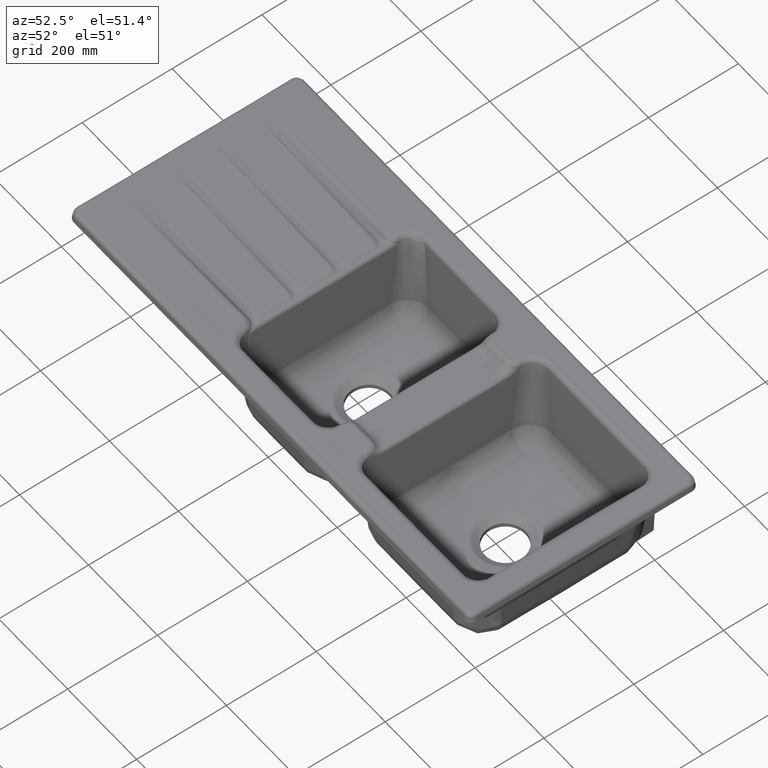
[diagram: clean part render]
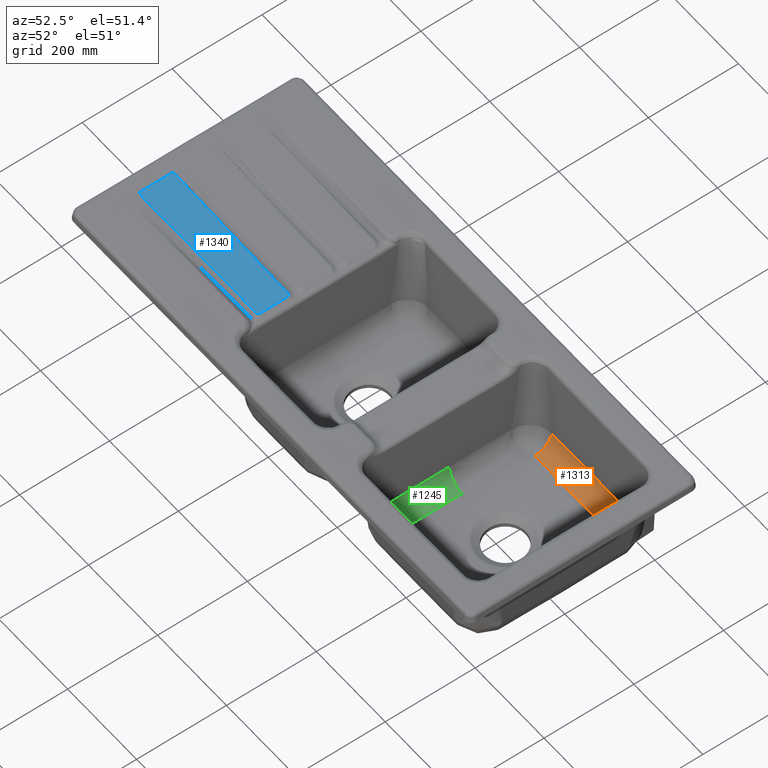
[diagram: same view with three faces highlighted in distinct colors, each labeled with its STEP entity id]
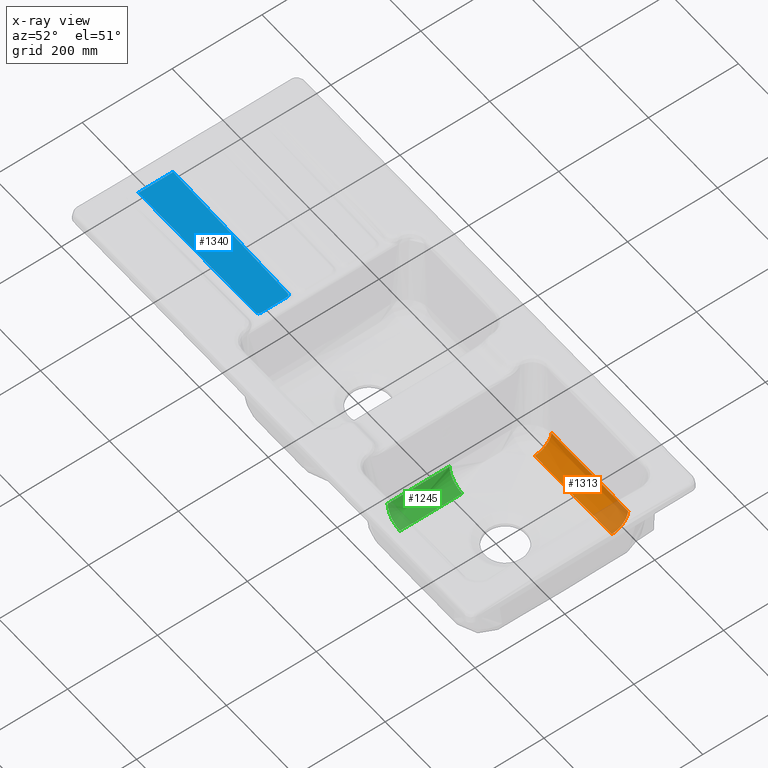
[diagram: x-ray of the same camera — body ghosted, the three highlighted faces saturated]
A machine part, auxiliary view with three faces highlighted in distinct colors.
The next image is the same camera in x-ray (body ghosted, the three faces saturated) — at least one of them is partly hidden behind the body in this view.
Their STEP definitions:

[orange] entity #1313 — the highlighted face is a freeform B-spline surface patch.
#1313=ADVANCED_FACE('',(#1942),#1774,.T.);
#1774=B_SPLINE_SURFACE_WITH_KNOTS('',3,3,((#22487,#22488,#22489,#22490,
#22491,#22492,#22493,#22494,#22495,#22496,#22497,#22498,#22499,#22500,#22501),
(#22502,#22503,#22504,#22505,#22506,#22507,#22508,#22509,#22510,#22511,
#22512,#22513,#22514,#22515,#22516),(#22517,#22518,#22519,#22520,#22521,
#22522,#22523,#22524,#22525,#22526,#22527,#22528,#22529,#22530,#22531),
(#22532,#22533,#22534,#22535,#22536,#22537,#22538,#22539,#22540,#22541,
#22542,#22543,#22544,#22545,#22546),(#22547,#22548,#22549,#22550,#22551,
#22552,#22553,#22554,#22555,#22556,#22557,#22558,#22559,#22560,#22561),
(#22562,#22563,#22564,#22565,#22566,#22567,#22568,#22569,#22570,#22571,
#22572,#22573,#22574,#22575,#22576),(#22577,#22578,#22579,#22580,#22581,
#22582,#22583,#22584,#22585,#22586,#22587,#22588,#22589,#22590,#22591)),
 .UNSPECIFIED.,.F.,.F.,.F.,(4,1,1,1,4),(4,1,1,1,1,1,1,1,1,1,1,1,4),(0.,
0.25,0.5,0.75,1.),(0.,0.125,0.1875,0.25,0.3125,0.375,0.5,0.625,0.6875,0.75,
0.8125,0.875,1.),.UNSPECIFIED.);
#1942=FACE_OUTER_BOUND('',#2467,.T.);
#2467=EDGE_LOOP('',(#3315,#3316,#3317,#3318));
#3315=ORIENTED_EDGE('',*,*,#6634,.F.);
#3316=ORIENTED_EDGE('',*,*,#6635,.F.);
#3317=ORIENTED_EDGE('',*,*,#6632,.T.);
#3318=ORIENTED_EDGE('',*,*,#6409,.T.);
#5600=VERTEX_POINT('',#14038);
#5601=VERTEX_POINT('',#14054);
#5755=VERTEX_POINT('',#22358);
#5756=VERTEX_POINT('',#22482);
#6409=EDGE_CURVE('',#5601,#5600,#7717,.T.);
#6632=EDGE_CURVE('',#5755,#5601,#7843,.T.);
#6634=EDGE_CURVE('',#5756,#5600,#7845,.T.);
#6635=EDGE_CURVE('',#5755,#5756,#7846,.T.);
#7717=B_SPLINE_CURVE_WITH_KNOTS('',3,(#14039,#14040,#14041,#14042,#14043,
#14044,#14045,#14046,#14047,#14048,#14049,#14050,#14051,#14052,#14053),
 .UNSPECIFIED.,.F.,.F.,(4,1,1,1,1,1,1,1,1,1,1,1,4),(0.,0.125,0.1875,0.25,
0.3125,0.375,0.5,0.625,0.6875,0.75,0.8125,0.875,1.),.UNSPECIFIED.);
#7843=B_SPLINE_CURVE_WITH_KNOTS('',3,(#22351,#22352,#22353,#22354,#22355,
#22356,#22357),.UNSPECIFIED.,.F.,.F.,(4,1,1,1,4),(0.,0.25,0.5,0.75,1.),
 .UNSPECIFIED.);
#7845=B_SPLINE_CURVE_WITH_KNOTS('',3,(#22475,#22476,#22477,#22478,#22479,
#22480,#22481),.UNSPECIFIED.,.F.,.F.,(4,1,1,1,4),(0.,0.25,0.5,0.75,1.),
 .UNSPECIFIED.);
#7846=B_SPLINE_CURVE_WITH_KNOTS('',3,(#22483,#22484,#22485,#22486),
 .UNSPECIFIED.,.F.,.F.,(4,4),(0.,1.),.UNSPECIFIED.);
#14038=CARTESIAN_POINT('',(338.671081378164,151.495997560551,-200.730560905507));
#14039=CARTESIAN_POINT('',(115.339493517428,151.485972144195,-200.74195009819));
#14040=CARTESIAN_POINT('',(124.643223175056,151.693548689581,-200.860644256913));
#14041=CARTESIAN_POINT('',(138.59944006903,151.983944231561,-201.030299641444));
#14042=CARTESIAN_POINT('',(157.209122373826,152.310510097852,-201.228280517648));
#14043=CARTESIAN_POINT('',(171.167115077379,152.519903208261,-201.360493016301));
#14044=CARTESIAN_POINT('',(185.125894421641,152.692906115651,-201.468643212749));
#14045=CARTESIAN_POINT('',(203.738438882254,152.871279420085,-201.572353884801));
#14046=CARTESIAN_POINT('',(227.005251366418,152.977423594581,-201.624947614948));
#14047=CARTESIAN_POINT('',(250.272356361887,152.88848458657,-201.562055115514));
#14048=CARTESIAN_POINT('',(268.884628546231,152.690186038739,-201.461415011293));
#14049=CARTESIAN_POINT('',(282.843378661751,152.513301654349,-201.3594842325));
#14050=CARTESIAN_POINT('',(296.801619239753,152.318707721917,-201.230503576311));
#14051=CARTESIAN_POINT('',(315.411487359841,152.004874494788,-201.029728004217));
#14052=CARTESIAN_POINT('',(329.367591416125,151.711636910154,-200.85354771252));
#14053=CARTESIAN_POINT('',(338.671081943358,151.495998048069,-200.730560862834));
#14054=CARTESIAN_POINT('',(115.339493516335,151.485971663498,-200.741950131869));
#22351=CARTESIAN_POINT('',(115.910992838852,188.53611553901,-164.330181068789));
#22352=CARTESIAN_POINT('',(115.842843070017,188.125632856359,-169.023500701935));
#22353=CARTESIAN_POINT('',(115.706553066155,185.628428822245,-178.262538084884));
#22354=CARTESIAN_POINT('',(115.527361967102,177.317510250379,-189.969093788411));
#22355=CARTESIAN_POINT('',(115.3955767507,165.467919693463,-198.07568112226));
#22356=CARTESIAN_POINT('',(115.350176073858,156.186166875423,-200.412648870987));
#22357=CARTESIAN_POINT('',(115.339493516062,151.485971543324,-200.741950140288));
#22358=CARTESIAN_POINT('',(115.911051427888,188.536116567058,-164.3301724387));
#22475=CARTESIAN_POINT('',(338.07845386252,188.537159626038,-164.320409434567));
#22476=CARTESIAN_POINT('',(338.149339332406,188.126747580289,-169.012998498771));
#22477=CARTESIAN_POINT('',(338.290948264988,185.630231060897,-178.250296323825));
#22478=CARTESIAN_POINT('',(338.476810608313,177.321548174765,-189.955269164462));
#22479=CARTESIAN_POINT('',(338.613253144465,165.475053742972,-198.061979626728));
#22480=CARTESIAN_POINT('',(338.660108608401,156.195423331698,-200.400265003798));
#22481=CARTESIAN_POINT('',(338.671080812089,151.495997473548,-200.730560920032));
#22482=CARTESIAN_POINT('',(338.079238459872,188.537191052621,-164.32005971266));
#22483=CARTESIAN_POINT('',(115.911042644857,188.536116615213,-164.330181153879));
#22484=CARTESIAN_POINT('',(189.966398478067,188.537128450231,-164.316835533396));
#22485=CARTESIAN_POINT('',(264.022202209495,188.537650183651,-164.311005328384));
#22486=CARTESIAN_POINT('',(338.078453839142,188.537226690721,-164.319669669157));
#22487=CARTESIAN_POINT('',(338.671081944722,151.495997447296,-200.730560905059));
#22488=CARTESIAN_POINT('',(329.367591417427,151.711636311822,-200.853547758041));
#22489=CARTESIAN_POINT('',(315.411487361023,152.004873899766,-201.029728054202));
#22490=CARTESIAN_POINT('',(296.801619240733,152.318707130432,-201.230503631114));
#22491=CARTESIAN_POINT('',(282.84337866256,152.513301065054,-201.359484290305));
#22492=CARTESIAN_POINT('',(268.884628546855,152.690185451418,-201.461415071433));
#22493=CARTESIAN_POINT('',(250.27235636225,152.888484001446,-201.562055177891));
#22494=CARTESIAN_POINT('',(227.005251366424,152.977423010444,-201.624947678521));
#22495=CARTESIAN_POINT('',(203.738438881907,152.87127883477,-201.572353947121));
#22496=CARTESIAN_POINT('',(185.125894421028,152.692905528348,-201.468643272692));
#22497=CARTESIAN_POINT('',(171.167115076579,152.519902619023,-201.360493073781));
#22498=CARTESIAN_POINT('',(157.209122372856,152.310509506267,-201.228280572057));
#22499=CARTESIAN_POINT('',(138.599440067856,151.983943636309,-201.03029969106));
#22500=CARTESIAN_POINT('',(124.643223173758,151.693548091056,-200.86064430219));
#22501=CARTESIAN_POINT('',(115.339493516062,151.485971543324,-200.741950140288));
#22502=CARTESIAN_POINT('',(338.660409212832,156.195422989792,-200.400260567399));
#22503=CARTESIAN_POINT('',(329.357408446665,156.391971125203,-200.497466534721));
#22504=CARTESIAN_POINT('',(315.402239515853,156.659310685799,-200.638729211465));
#22505=CARTESIAN_POINT('',(296.793955413509,156.945481942095,-200.801816082782));
#22506=CARTESIAN_POINT('',(282.837053543642,157.122942875946,-200.907316732593));
#22507=CARTESIAN_POINT('',(268.879749538256,157.284382835987,-200.990982826771));
#22508=CARTESIAN_POINT('',(250.269521472484,157.465497567636,-201.074123439613));
#22509=CARTESIAN_POINT('',(227.005202055486,157.546719034037,-201.127660202535));
#22510=CARTESIAN_POINT('',(203.741156616102,157.449785861019,-201.08486759697));
#22511=CARTESIAN_POINT('',(185.130690648262,157.286967174541,-200.999753197607));
#22512=CARTESIAN_POINT('',(171.173372118606,157.129096305032,-200.910865152909));
#22513=CARTESIAN_POINT('',(157.2167132411,156.93806391739,-200.802679160846));
#22514=CARTESIAN_POINT('',(138.608625175411,156.640185189846,-200.642186925729));
#22515=CARTESIAN_POINT('',(124.653377347638,156.375393331694,-200.506476125698));
#22516=CARTESIAN_POINT('',(115.350176073858,156.186166875423,-200.412648870987));
#22517=CARTESIAN_POINT('',(338.614152758205,165.475006376374,-198.061966672292));
#22518=CARTESIAN_POINT('',(329.31434430128,165.623609407549,-198.122033871129));
#22519=CARTESIAN_POINT('',(315.364270156849,165.826409690585,-198.212226933688));
#22520=CARTESIAN_POINT('',(296.763310787087,166.04402054525,-198.319338954957));
#22521=CARTESIAN_POINT('',(282.812144166315,166.179152898023,-198.389652242873));
#22522=CARTESIAN_POINT('',(268.860742175758,166.303493690676,-198.445812227901));
#22523=CARTESIAN_POINT('',(250.258566891195,166.444413391858,-198.502358846176));
#22524=CARTESIAN_POINT('',(227.004712474305,166.507483716232,-198.54096625358));
#22525=CARTESIAN_POINT('',(203.751090196671,166.432264103194,-198.512791670809));
#22526=CARTESIAN_POINT('',(185.14873621651,166.306742485897,-198.455742116702));
#22527=CARTESIAN_POINT('',(171.1973390916,166.185541365428,-198.395992312754));
#22528=CARTESIAN_POINT('',(157.246392817394,166.039388399531,-198.323962855193));
#22529=CARTESIAN_POINT('',(138.645628934754,165.812080994529,-198.219278538379));
#22530=CARTESIAN_POINT('',(124.69552373676,165.610985256014,-198.133403875827));
#22531=CARTESIAN_POINT('',(115.3955767507,165.467919693463,-198.07568112226));
#22532=CARTESIAN_POINT('',(338.478608858975,177.321395824947,-189.955248637784));
#22533=CARTESIAN_POINT('',(329.189616108385,177.405196815084,-189.994844828349));
#22534=CARTESIAN_POINT('',(315.255886323449,177.520477436325,-190.054434022826));
#22535=CARTESIAN_POINT('',(296.677006824695,177.644902206563,-190.125382772386));
#22536=CARTESIAN_POINT('',(282.742549397741,177.722426294413,-190.172040551057));
#22537=CARTESIAN_POINT('',(268.807935298963,177.795655956395,-190.209387001883));
#22538=CARTESIAN_POINT('',(250.228246155791,177.880549684755,-190.247122015388));
#22539=CARTESIAN_POINT('',(227.002878365867,177.918405524154,-190.27320393746));
#22540=CARTESIAN_POINT('',(203.777665899358,177.873402465341,-190.255142787984));
#22541=CARTESIAN_POINT('',(185.197858753679,177.79936099707,-190.217905591164));
#22542=CARTESIAN_POINT('',(171.263249082978,177.728533491568,-190.178776265307));
#22543=CARTESIAN_POINT('',(157.328940076468,177.643796027691,-190.13156534123));
#22544=CARTESIAN_POINT('',(138.750193383986,177.512789663751,-190.062990450345));
#22545=CARTESIAN_POINT('',(124.816445265692,177.398190101231,-190.006805522086));
#22546=CARTESIAN_POINT('',(115.527361967102,177.317510250379,-189.969093788411));
#22547=CARTESIAN_POINT('',(338.29364520135,185.630044015674,-178.250277660093));
#22548=CARTESIAN_POINT('',(329.01963922658,185.670247130392,-178.277602136476));
#22549=CARTESIAN_POINT('',(315.108435968721,185.725681612708,-178.317266511662));
#22550=CARTESIAN_POINT('',(296.559766966375,185.78566513279,-178.363102778747));
#22551=CARTESIAN_POINT('',(282.648069722077,185.823091047036,-178.392812129405));
#22552=CARTESIAN_POINT('',(268.736256675849,185.858699199004,-178.416484077116));
#22553=CARTESIAN_POINT('',(250.187032987198,185.900229906172,-178.440186074506));
#22554=CARTESIAN_POINT('',(227.00007715621,185.91878909211,-178.455860424453));
#22555=CARTESIAN_POINT('',(203.813195767831,185.89689303317,-178.444976594998));
#22556=CARTESIAN_POINT('',(185.263906639835,185.860939893825,-178.422222291151));
#22557=CARTESIAN_POINT('',(171.352089047689,185.826618113631,-178.398239018855));
#22558=CARTESIAN_POINT('',(157.440457322309,185.785632301254,-178.368907837987));
#22559=CARTESIAN_POINT('',(138.89184055954,185.722351314839,-178.325255445735));
#22560=CARTESIAN_POINT('',(124.980614615678,185.667206430548,-178.288212389327));
#22561=CARTESIAN_POINT('',(115.706553066155,185.628428822245,-178.262538084884));
#22562=CARTESIAN_POINT('',(338.15263537563,188.126654086002,-169.012990187368));
#22563=CARTESIAN_POINT('',(328.889895229997,188.14208297123,-169.023529033135));
#22564=CARTESIAN_POINT('',(314.995711649788,188.163196409481,-169.038666526649));
#22565=CARTESIAN_POINT('',(296.469987910779,188.185970272133,-169.056054352057));
#22566=CARTESIAN_POINT('',(282.575624514729,188.200144527417,-169.067316708012));
#22567=CARTESIAN_POINT('',(268.681218146788,188.213328278943,-169.076345986409));
#22568=CARTESIAN_POINT('',(250.155292027324,188.228406079155,-169.085472688188));
#22569=CARTESIAN_POINT('',(226.997736658279,188.235156293838,-169.091686296594));
#22570=CARTESIAN_POINT('',(203.840205617436,188.22709519324,-169.088332835846));
#22571=CARTESIAN_POINT('',(185.314256712998,188.213739701767,-169.080549540084));
#22572=CARTESIAN_POINT('',(171.419847809352,188.200898815496,-169.072199785444));
#22573=CARTESIAN_POINT('',(157.52550494109,188.185473261471,-169.061863582499));
#22574=CARTESIAN_POINT('',(138.999796477507,188.161542943193,-169.046297937446));
#22575=CARTESIAN_POINT('',(125.105603295283,188.140585167911,-169.032897425166));
#22576=CARTESIAN_POINT('',(115.842843070017,188.125632856359,-169.023500701935));
#22577=CARTESIAN_POINT('',(338.082049442575,188.537159533186,-164.32040928198));
#22578=CARTESIAN_POINT('',(328.824922084137,188.537080242787,-164.320813309547));
#22579=CARTESIAN_POINT('',(314.939231046726,188.536946267914,-164.32141803557));
#22580=CARTESIAN_POINT('',(296.424976329877,188.536846514687,-164.322231235734));
#22581=CARTESIAN_POINT('',(282.539285292199,188.536781300723,-164.322841975541));
#22582=CARTESIAN_POINT('',(268.653594254479,188.536724912988,-164.323453487268));
#22583=CARTESIAN_POINT('',(250.139339537415,188.536650275478,-164.324268883971));
#22584=CARTESIAN_POINT('',(226.996521140917,188.536541526675,-164.325286778358));
#22585=CARTESIAN_POINT('',(203.853702744169,188.536365764822,-164.32629881167));
#22586=CARTESIAN_POINT('',(185.339448026817,188.536227787903,-164.32710866859));
#22587=CARTESIAN_POINT('',(171.453756988872,188.536136318163,-164.32771711197));
#22588=CARTESIAN_POINT('',(157.568065951043,188.536067564612,-164.328327542169));
#22589=CARTESIAN_POINT('',(139.053811234045,188.53600207794,-164.329143739309));
#22590=CARTESIAN_POINT('',(125.168120197363,188.536124783285,-164.32977091485));
#22591=CARTESIAN_POINT('',(115.910992838852,188.53611553901,-164.330181068789));

[blue] entity #1340 — the highlighted planar face has unit normal (-0.0201, -0, -0.9998).
#534=LINE('',#18093,#718);
#557=LINE('',#25016,#741);
#718=VECTOR('',#9006,1.);
#741=VECTOR('',#9185,1.);
#1159=PLANE('',#8559);
#1340=ADVANCED_FACE('',(#1969),#1159,.F.);
#1969=FACE_OUTER_BOUND('',#2494,.T.);
#2494=EDGE_LOOP('',(#3443,#3444,#3445,#3446,#3447,#3448));
#3443=ORIENTED_EDGE('',*,*,#6483,.T.);
#3444=ORIENTED_EDGE('',*,*,#6487,.T.);
#3445=ORIENTED_EDGE('',*,*,#6490,.T.);
#3446=ORIENTED_EDGE('',*,*,#6496,.T.);
#3447=ORIENTED_EDGE('',*,*,#6703,.F.);
#3448=ORIENTED_EDGE('',*,*,#6492,.T.);
#5655=VERTEX_POINT('',#17993);
#5657=VERTEX_POINT('',#18001);
#5659=VERTEX_POINT('',#18091);
#5661=VERTEX_POINT('',#18097);
#5663=VERTEX_POINT('',#18276);
#5665=VERTEX_POINT('',#18338);
#6483=EDGE_CURVE('',#5657,#5655,#7773,.T.);
#6487=EDGE_CURVE('',#5655,#5659,#534,.T.);
#6490=EDGE_CURVE('',#5659,#5661,#7775,.T.);
#6492=EDGE_CURVE('',#5663,#5657,#7777,.T.);
#6496=EDGE_CURVE('',#5661,#5665,#7779,.T.);
#6703=EDGE_CURVE('',#5663,#5665,#557,.T.);
#7773=B_SPLINE_CURVE_WITH_KNOTS('',3,(#17995,#17996,#17997,#17998,#17999,
#18000),.UNSPECIFIED.,.F.,.F.,(4,2,4),(0.,0.5,1.),.UNSPECIFIED.);
#7775=B_SPLINE_CURVE_WITH_KNOTS('',3,(#18099,#18100,#18101,#18102,#18103,
#18104),.UNSPECIFIED.,.F.,.F.,(4,2,4),(0.,0.5,1.),.UNSPECIFIED.);
#7777=B_SPLINE_CURVE_WITH_KNOTS('',3,(#18189,#18190,#18191,#18192,#18193,
#18194,#18195,#18196,#18197,#18198,#18199,#18200,#18201,#18202,#18203,#18204,
#18205,#18206,#18207,#18208,#18209,#18210,#18211,#18212,#18213,#18214,#18215,
#18216,#18217,#18218,#18219,#18220,#18221,#18222,#18223,#18224,#18225,#18226,
#18227,#18228,#18229,#18230,#18231,#18232,#18233,#18234,#18235,#18236,#18237,
#18238,#18239,#18240,#18241,#18242,#18243,#18244,#18245,#18246,#18247,#18248,
#18249,#18250,#18251,#18252,#18253,#18254,#18255,#18256,#18257,#18258,#18259,
#18260,#18261,#18262,#18263,#18264,#18265,#18266,#18267,#18268,#18269,#18270,
#18271,#18272,#18273,#18274,#18275),.UNSPECIFIED.,.F.,.F.,(4,2,2,1,1,2,
2,1,1,1,2,2,1,1,1,2,2,1,1,1,2,2,1,1,1,1,2,2,1,1,1,1,2,2,1,1,1,1,1,2,2,1,
1,1,1,1,2,2,1,1,1,1,1,2,2,1,1,1,1,1,2,2,4),(0.,0.0156250000000049,0.0195312500000069,
0.0234375000000088,0.0312500000000116,0.0351562500000126,0.0390625000000135,
0.0468750000000154,0.0546875000000173,0.0585937500000187,0.0605468750000194,
0.0625000000000202,0.0781250000000185,0.0859375000000182,0.0898437500000185,
0.0917968750000182,0.0937500000000179,0.109375000000012,0.117187500000009,
0.121093750000008,0.123046875000008,0.125000000000007,0.156250000000001,
0.171874999999998,0.179687499999996,0.183593749999995,0.185546874999994,
0.187499999999994,0.218749999999989,0.234374999999987,0.242187499999985,
0.246093749999984,0.248046874999984,0.249999999999983,0.312499999999986,
0.343749999999987,0.359374999999988,0.367187499999988,0.371093749999988,
0.373046874999988,0.374999999999988,0.437500000000007,0.468750000000017,
0.484375000000022,0.492187500000025,0.496093750000026,0.498046875000026,
0.500000000000027,0.562500000000036,0.59375000000004,0.609375000000042,
0.617187500000043,0.621093750000043,0.623046875000043,0.625000000000043,
0.687500000000046,0.718750000000047,0.734375000000047,0.742187500000047,
0.746093750000047,0.748046875000047,0.750000000000048,1.),.UNSPECIFIED.);
#7779=B_SPLINE_CURVE_WITH_KNOTS('',3,(#18340,#18341,#18342,#18343,#18344,
#18345,#18346,#18347,#18348,#18349,#18350,#18351,#18352,#18353,#18354,#18355,
#18356,#18357,#18358,#18359,#18360,#18361,#18362,#18363,#18364,#18365,#18366,
#18367,#18368,#18369,#18370,#18371,#18372,#18373,#18374,#18375,#18376,#18377,
#18378,#18379,#18380,#18381,#18382,#18383,#18384,#18385,#18386,#18387,#18388,
#18389,#18390,#18391,#18392,#18393,#18394,#18395,#18396,#18397,#18398,#18399,
#18400,#18401,#18402,#18403,#18404,#18405,#18406,#18407,#18408,#18409,#18410,
#18411,#18412,#18413,#18414,#18415,#18416,#18417,#18418,#18419,#18420,#18421,
#18422,#18423,#18424,#18425,#18426,#18427,#18428,#18429),.UNSPECIFIED.,
 .F.,.F.,(4,1,1,1,1,1,1,2,2,1,1,1,1,1,2,2,1,1,1,1,1,2,2,1,1,1,1,1,2,2,1,
1,1,1,1,2,2,1,1,1,1,2,2,1,1,1,1,2,2,1,1,1,2,2,1,1,1,2,2,1,2,2,1,2,2,4),
(0.,0.125000000000017,0.187500000000025,0.218750000000029,0.234375000000032,
0.242187500000033,0.246093750000033,0.248046875000033,0.250000000000033,
0.312500000000026,0.343750000000022,0.35937500000002,0.367187500000019,
0.371093750000018,0.373046875000018,0.375000000000018,0.43750000000001,
0.468750000000007,0.484375000000005,0.492187500000004,0.496093750000003,
0.498046875000003,0.500000000000003,0.562500000000001,0.593749999999999,
0.609374999999998,0.617187499999998,0.621093749999998,0.623046874999999,
0.624999999999999,0.687500000000012,0.718750000000019,0.734375000000023,
0.742187500000025,0.746093750000026,0.748046875000026,0.750000000000027,
0.781250000000037,0.796875000000043,0.804687500000046,0.808593750000047,
0.810546875000048,0.812500000000048,0.843750000000045,0.859375000000044,
0.867187500000044,0.871093750000043,0.873046875000043,0.875000000000043,
0.89062500000004,0.898437500000039,0.902343750000038,0.904296875000037,
0.906250000000036,0.921875000000029,0.929687500000026,0.933593750000024,
0.935546875000023,0.937500000000022,0.953125000000016,0.960937500000013,
0.96875000000001,0.976562500000008,0.980468750000007,0.984375000000006,
1.),.UNSPECIFIED.);
#8559=AXIS2_PLACEMENT_3D('',#25017,#9186,#9187);
#9006=DIRECTION('',(0.,1.,-1.17145536458252E-15));
#9185=DIRECTION('',(0.,1.,-1.17145536458252E-15));
#9186=DIRECTION('',(-0.0200699387835891,-1.17121940827796E-15,-0.9997985784933));
#9187=DIRECTION('',(0.9997985784933,-2.35110374548783E-17,-0.0200699387835891));
#17993=CARTESIAN_POINT('',(-319.707335081805,-124.9961625,-17.4132581787487));
#17995=CARTESIAN_POINT('',(-326.049019970949,-131.378001273926,-17.285955309703));
#17996=CARTESIAN_POINT('',(-324.385769218709,-131.367466808519,-17.3193433755568));
#17997=CARTESIAN_POINT('',(-322.720717165708,-130.660599374471,-17.3527676006898));
#17998=CARTESIAN_POINT('',(-320.401267162348,-128.325841009861,-17.3993281985746));
#17999=CARTESIAN_POINT('',(-319.707335081805,-126.657261541942,-17.4132581787487));
#18000=CARTESIAN_POINT('',(-319.707335081805,-124.9961625,-17.4132581787487));
#18001=CARTESIAN_POINT('',(-326.04901997086,-131.378001287965,-17.2859553097048));
#18091=CARTESIAN_POINT('',(-319.707335081805,-66.3312968999997,-17.4132581787487));
#18093=CARTESIAN_POINT('',(-319.707335081805,2.49792511675118E-13,-17.4132581787488));
#18097=CARTESIAN_POINT('',(-326.049019970888,-59.9494581164276,-17.2859553097043));
#18099=CARTESIAN_POINT('',(-319.707335081805,-66.3312968999997,-17.4132581787487));
#18100=CARTESIAN_POINT('',(-319.707335081805,-64.66769636332,-17.4132581787487));
#18101=CARTESIAN_POINT('',(-320.404066354148,-62.997920785137,-17.3992720076485));
#18102=CARTESIAN_POINT('',(-322.72431859327,-60.6641171984037,-17.3526953056974));
#18103=CARTESIAN_POINT('',(-324.38825525055,-59.9599768457989,-17.3192934709982));
#18104=CARTESIAN_POINT('',(-326.049019970949,-59.9494581260732,-17.2859553097031));
#18189=CARTESIAN_POINT('',(-661.951701945412,-134.415380392036,-10.5430508792622));
#18190=CARTESIAN_POINT('',(-660.350931165104,-134.371961939338,-10.5751847232769));
#18191=CARTESIAN_POINT('',(-658.627754583697,-134.329597715246,-10.6097757391536));
#18192=CARTESIAN_POINT('',(-656.320776605564,-134.277960220888,-10.656085973827));
#18193=CARTESIAN_POINT('',(-655.874983315249,-134.268228775031,-10.6650348203639));
#18194=CARTESIAN_POINT('',(-655.074025842109,-134.251032095471,-10.6811132263549));
#18195=CARTESIAN_POINT('',(-653.841601372758,-134.225033111172,-10.7058528931111));
#18196=CARTESIAN_POINT('',(-652.074415708395,-134.18955193894,-10.7413273465319));
#18197=CARTESIAN_POINT('',(-650.656061681202,-134.16232916489,-10.769799359907));
#18198=CARTESIAN_POINT('',(-649.689833489979,-134.144044672218,-10.7891954073369));
#18199=CARTESIAN_POINT('',(-649.338873881516,-134.137505955623,-10.7962405642404));
#18200=CARTESIAN_POINT('',(-648.117902089487,-134.114995778528,-10.8207503301569));
#18201=CARTESIAN_POINT('',(-646.442158310249,-134.084864789329,-10.8543891808112));
#18202=CARTESIAN_POINT('',(-644.228025111532,-134.04690750348,-10.8988356510431));
#18203=CARTESIAN_POINT('',(-642.61541879823,-134.020183289977,-10.9312070813354));
#18204=CARTESIAN_POINT('',(-641.910863290915,-134.008697031316,-10.9453503159885));
#18205=CARTESIAN_POINT('',(-641.438173282504,-134.001032186809,-10.9548390867634));
#18206=CARTESIAN_POINT('',(-641.16777721368,-133.996673745967,-10.960267012613));
#18207=CARTESIAN_POINT('',(-639.306816209709,-133.966817040071,-10.997623910524));
#18208=CARTESIAN_POINT('',(-636.754142249864,-133.927263886399,-11.0488662419402));
#18209=CARTESIAN_POINT('',(-633.651085542915,-133.881566168611,-11.1111569467783));
#18210=CARTESIAN_POINT('',(-632.068322917658,-133.858829216759,-11.1429292954105));
#18211=CARTESIAN_POINT('',(-631.383303020023,-133.849108788902,-11.1566803725842));
#18212=CARTESIAN_POINT('',(-630.925135741991,-133.842633832571,-11.1658776143293));
#18213=CARTESIAN_POINT('',(-630.665816879433,-133.838985605642,-11.1710831765384));
#18214=CARTESIAN_POINT('',(-628.856101965447,-133.813616981265,-11.2074113613556));
#18215=CARTESIAN_POINT('',(-626.337559395273,-133.779281231662,-11.2579685398659));
#18216=CARTESIAN_POINT('',(-623.214478364898,-133.738328752197,-11.3206612126143));
#18217=CARTESIAN_POINT('',(-621.606742508418,-133.717628986232,-11.3529348734435));
#18218=CARTESIAN_POINT('',(-620.907813853935,-133.708709759483,-11.3669651547534));
#18219=CARTESIAN_POINT('',(-620.439661639456,-133.702752964211,-11.3763628339341));
#18220=CARTESIAN_POINT('',(-620.17328635158,-133.69937455344,-11.3817100466989));
#18221=CARTESIAN_POINT('',(-616.686984256333,-133.655270592209,-11.4516940126075));
#18222=CARTESIAN_POINT('',(-611.601878683554,-133.593420066182,-11.5537723309299));
#18223=CARTESIAN_POINT('',(-605.383537704147,-133.521985426348,-11.6785991965374));
#18224=CARTESIAN_POINT('',(-602.202937761652,-133.48644918323,-11.742446502899));
#18225=CARTESIAN_POINT('',(-600.594780427207,-133.468726330871,-11.7747286244693));
#18226=CARTESIAN_POINT('',(-599.901743563188,-133.461140523261,-11.7886406340829));
#18227=CARTESIAN_POINT('',(-599.438868636547,-133.456085473863,-11.7979323770819));
#18228=CARTESIAN_POINT('',(-599.171738326145,-133.453175606605,-11.8032947461554));
#18229=CARTESIAN_POINT('',(-595.82239590905,-133.416762479964,-11.8705293859342));
#18230=CARTESIAN_POINT('',(-590.833927469719,-133.364138927195,-11.9706678121681));
#18231=CARTESIAN_POINT('',(-584.559073826647,-133.300615407244,-12.0966291119753));
#18232=CARTESIAN_POINT('',(-581.307903555815,-133.268321303505,-12.1618930458459));
#18233=CARTESIAN_POINT('',(-579.653882558075,-133.252041165694,-12.1950958337728));
#18234=CARTESIAN_POINT('',(-578.938923017117,-133.245035445359,-12.2094479188112));
#18235=CARTESIAN_POINT('',(-578.460929234463,-133.24035862771,-12.2190431574554));
#18236=CARTESIAN_POINT('',(-578.184291392102,-133.237656448433,-12.2245963805554));
#18237=CARTESIAN_POINT('',(-571.47251797269,-133.172179679598,-12.3593284001387));
#18238=CARTESIAN_POINT('',(-561.342720432343,-133.077177916106,-12.5626737747954));
#18239=CARTESIAN_POINT('',(-548.881991764836,-132.966757578109,-12.8128102192107));
#18240=CARTESIAN_POINT('',(-542.490969546806,-132.911651172296,-12.941103484914));
#18241=CARTESIAN_POINT('',(-539.255293966722,-132.884123910186,-13.0060563786395));
#18242=CARTESIAN_POINT('',(-537.627415058913,-132.87036676433,-13.0387343907208));
#18243=CARTESIAN_POINT('',(-536.927601001759,-132.864472234363,-13.0527824455881));
#18244=CARTESIAN_POINT('',(-536.460580148524,-132.860542856538,-13.0621574138434));
#18245=CARTESIAN_POINT('',(-536.185189124788,-132.858228733262,-13.0676856083286));
#18246=CARTESIAN_POINT('',(-529.837736402328,-132.804940619643,-13.1951042607571));
#18247=CARTESIAN_POINT('',(-519.972848619005,-132.724445238677,-13.3931318416891));
#18248=CARTESIAN_POINT('',(-507.357411635422,-132.625309515223,-13.6463738980744));
#18249=CARTESIAN_POINT('',(-500.773092834538,-132.57443554208,-13.7785473959248));
#18250=CARTESIAN_POINT('',(-497.411783356822,-132.548672027655,-13.8460222622645));
#18251=CARTESIAN_POINT('',(-495.713841098646,-132.535708638479,-13.880106724788));
#18252=CARTESIAN_POINT('',(-494.982447091002,-132.530135407697,-13.8947887150167));
#18253=CARTESIAN_POINT('',(-494.494027870701,-132.526416033273,-13.9045932337098));
#18254=CARTESIAN_POINT('',(-494.211345614868,-132.524264932745,-13.9102677922577));
#18255=CARTESIAN_POINT('',(-487.381276634718,-132.472319475991,-14.0473744748116));
#18256=CARTESIAN_POINT('',(-477.165368016774,-132.396045549751,-14.2524484416998));
#18257=CARTESIAN_POINT('',(-464.754598012396,-132.30580473056,-14.501582016805));
#18258=CARTESIAN_POINT('',(-458.426160522679,-132.260370677988,-14.6286189577914));
#18259=CARTESIAN_POINT('',(-455.231178655939,-132.237575240957,-14.6927549666431));
#18260=CARTESIAN_POINT('',(-453.625996942098,-132.226157919756,-14.7249773556586));
#18261=CARTESIAN_POINT('',(-452.936413897494,-132.221260581522,-14.738820033363));
#18262=CARTESIAN_POINT('',(-452.476325640117,-132.217994755906,-14.748055836813));
#18263=CARTESIAN_POINT('',(-452.217120636271,-132.216155894252,-14.7532591134245));
#18264=CARTESIAN_POINT('',(-445.569845001479,-132.169019877138,-14.8866964056328));
#18265=CARTESIAN_POINT('',(-435.486860696969,-132.098509797681,-15.0891020522305));
#18266=CARTESIAN_POINT('',(-422.99849445495,-132.012837988282,-15.3397932928223));
#18267=CARTESIAN_POINT('',(-416.573090195585,-131.969149571075,-15.4687767430084));
#18268=CARTESIAN_POINT('',(-413.315082781314,-131.947092234344,-15.5341779255741));
#18269=CARTESIAN_POINT('',(-411.67475275303,-131.936010283947,-15.567105881225));
#18270=CARTESIAN_POINT('',(-410.969327100663,-131.931249459055,-15.5812665831543));
#18271=CARTESIAN_POINT('',(-410.498503983792,-131.928073038555,-15.5907178779819));
#18272=CARTESIAN_POINT('',(-410.218317460136,-131.926183511337,-15.5963423372467));
#18273=CARTESIAN_POINT('',(-385.521832976394,-131.759683321998,-16.0920991250844));
#18274=CARTESIAN_POINT('',(-357.529215685383,-131.577386142575,-16.6540224239449));
#18275=CARTESIAN_POINT('',(-326.049019970949,-131.378001273926,-17.285955309703));
#18276=CARTESIAN_POINT('',(-661.951701945357,-134.415380396162,-10.5430508792633));
#18338=CARTESIAN_POINT('',(-661.951701945374,-56.9120790058379,-10.5430508792631));
#18340=CARTESIAN_POINT('',(-326.049019970949,-59.9494581260732,-17.2859553097031));
#18341=CARTESIAN_POINT('',(-341.788676838842,-59.8497684848251,-16.9699977192359));
#18342=CARTESIAN_POINT('',(-364.090650761118,-59.7066398130399,-16.5223082935839));
#18343=CARTESIAN_POINT('',(-387.821475422872,-59.5508664952761,-16.0459361437423));
#18344=CARTESIAN_POINT('',(-399.11485152519,-59.4757823695573,-15.8192331138429));
#18345=CARTESIAN_POINT('',(-404.618530519209,-59.4389409399886,-15.7087523601485));
#18346=CARTESIAN_POINT('',(-407.334617751934,-59.420695383527,-15.6542296736152));
#18347=CARTESIAN_POINT('',(-408.683723302225,-59.4116163948768,-15.627147752927));
#18348=CARTESIAN_POINT('',(-409.259996095334,-59.4077347832226,-15.6155796631845));
#18349=CARTESIAN_POINT('',(-409.643752335213,-59.405149127338,-15.6078761472886));
#18350=CARTESIAN_POINT('',(-409.790942234007,-59.4041571882464,-15.6049214598926));
#18351=CARTESIAN_POINT('',(-417.576563191229,-59.351667752369,-15.4486330440407));
#18352=CARTESIAN_POINT('',(-428.487434862747,-59.2772642785301,-15.2296084012442));
#18353=CARTESIAN_POINT('',(-440.492866316594,-59.1938636196424,-14.9886115849531));
#18354=CARTESIAN_POINT('',(-446.314602336119,-59.1530141386797,-14.8717461602171));
#18355=CARTESIAN_POINT('',(-449.180225419032,-59.1328021103186,-14.8142216937015));
#18356=CARTESIAN_POINT('',(-450.601725728776,-59.1227492741681,-14.7856865219067));
#18357=CARTESIAN_POINT('',(-451.208516311871,-59.1184523111101,-14.773505818594));
#18358=CARTESIAN_POINT('',(-451.612504737186,-59.1155902013585,-14.7653961621694));
#18359=CARTESIAN_POINT('',(-451.785296835152,-59.1143655752598,-14.7619275366852));
#18360=CARTESIAN_POINT('',(-459.388113448645,-59.0604539629297,-14.6093087319599));
#18361=CARTESIAN_POINT('',(-470.166020272224,-58.9827501060856,-14.3929532231429));
#18362=CARTESIAN_POINT('',(-482.248957733922,-58.8933434156156,-14.1504005526363));
#18363=CARTESIAN_POINT('',(-488.167604673319,-58.8489520226759,-14.031589739828));
#18364=CARTESIAN_POINT('',(-491.096222695154,-58.82683431428,-13.9728007140351));
#18365=CARTESIAN_POINT('',(-492.552855344106,-58.8157949571005,-13.9435602962915));
#18366=CARTESIAN_POINT('',(-493.175481544664,-58.811067981956,-13.9310617090769));
#18367=CARTESIAN_POINT('',(-493.590200137324,-58.8079175936225,-13.922736655465));
#18368=CARTESIAN_POINT('',(-493.75936071029,-58.8066319893591,-13.9193409291487));
#18369=CARTESIAN_POINT('',(-501.844681078385,-58.7451400723053,-13.757036352683));
#18370=CARTESIAN_POINT('',(-512.973472497643,-58.6586782899404,-13.5336371927677));
#18371=CARTESIAN_POINT('',(-524.851631988056,-58.5630229711493,-13.2951952315943));
#18372=CARTESIAN_POINT('',(-530.514354108583,-58.5164995019125,-13.1815218490229));
#18373=CARTESIAN_POINT('',(-533.276625762676,-58.4935638148337,-13.126072057241));
#18374=CARTESIAN_POINT('',(-534.64048923818,-58.4821774831792,-13.098693886226));
#18375=CARTESIAN_POINT('',(-535.221300938066,-58.4773150935883,-13.0870346825502));
#18376=CARTESIAN_POINT('',(-535.607686245059,-58.4740773820461,-13.079278390808));
#18377=CARTESIAN_POINT('',(-535.758871847911,-58.4728096695954,-13.0762434937202));
#18378=CARTESIAN_POINT('',(-543.479748684483,-58.4079918347328,-12.9212547501883));
#18379=CARTESIAN_POINT('',(-554.343439118806,-58.3134693016837,-12.7031772227034));
#18380=CARTESIAN_POINT('',(-566.376061847038,-58.2027694326683,-12.4616345692566));
#18381=CARTESIAN_POINT('',(-572.231952516534,-58.1473136030461,-12.3440835246879));
#18382=CARTESIAN_POINT('',(-575.119792677627,-58.1195592144563,-12.2861130729423));
#18383=CARTESIAN_POINT('',(-576.55368646476,-58.1056754017168,-12.2573291147041));
#18384=CARTESIAN_POINT('',(-577.166063882085,-58.0997237780188,-12.2450362613809));
#18385=CARTESIAN_POINT('',(-577.573838051092,-58.0957557137228,-12.2368506100052));
#18386=CARTESIAN_POINT('',(-577.740590397803,-58.0941314602795,-12.2335032263796));
#18387=CARTESIAN_POINT('',(-581.825786591967,-58.054278639101,-12.1514970710404));
#18388=CARTESIAN_POINT('',(-587.33368055655,-57.9992270758966,-12.0409317061023));
#18389=CARTESIAN_POINT('',(-593.305533630414,-57.9371199276973,-11.9210528343023));
#18390=CARTESIAN_POINT('',(-596.177954362809,-57.9065962724824,-11.8633919118926));
#18391=CARTESIAN_POINT('',(-597.585788277873,-57.8914669245961,-11.8351310790603));
#18392=CARTESIAN_POINT('',(-598.183065001942,-57.8850113068708,-11.8231413567834));
#18393=CARTESIAN_POINT('',(-598.579898225078,-57.8807138702788,-11.8151753337594));
#18394=CARTESIAN_POINT('',(-598.742462016819,-57.8789507375403,-11.8119120311114));
#18395=CARTESIAN_POINT('',(-602.690585231279,-57.836028440264,-11.7326574763153));
#18396=CARTESIAN_POINT('',(-608.101682679276,-57.7750120259149,-11.62403520292));
#18397=CARTESIAN_POINT('',(-614.129863470794,-57.7030908067459,-11.5030256095232));
#18398=CARTESIAN_POINT('',(-617.072762308767,-57.6669463465544,-11.4439499108825));
#18399=CARTESIAN_POINT('',(-618.526413838307,-57.6488281538068,-11.4147693360766));
#18400=CARTESIAN_POINT('',(-619.145593517514,-57.6410533649182,-11.4023399342701));
#18401=CARTESIAN_POINT('',(-619.557532451774,-57.6358679836281,-11.3940706794711));
#18402=CARTESIAN_POINT('',(-619.732014365735,-57.6336671687558,-11.3905681326508));
#18403=CARTESIAN_POINT('',(-621.857686048063,-57.6067765235761,-11.3478974373168));
#18404=CARTESIAN_POINT('',(-624.58686721489,-57.5714260844141,-11.2931119033844));
#18405=CARTESIAN_POINT('',(-627.587078359369,-57.5310654756106,-11.232885718528));
#18406=CARTESIAN_POINT('',(-629.04122554407,-57.5111055637637,-11.2036951939493));
#18407=CARTESIAN_POINT('',(-629.65458325447,-57.5025985428053,-11.1913826622404));
#18408=CARTESIAN_POINT('',(-630.061299900092,-57.4969376903833,-11.1832182395702));
#18409=CARTESIAN_POINT('',(-630.234254271562,-57.4945233652361,-11.1797463566106));
#18410=CARTESIAN_POINT('',(-632.30857006123,-57.46544630069,-11.1381065785472));
#18411=CARTESIAN_POINT('',(-635.003480690511,-57.4264129066464,-11.0840089907727));
#18412=CARTESIAN_POINT('',(-638.02356651669,-57.3804119912935,-11.0233838419113));
#18413=CARTESIAN_POINT('',(-639.502615286116,-57.3572960447082,-10.9936934433661));
#18414=CARTESIAN_POINT('',(-640.129851727943,-57.3473644628341,-10.9811023102508));
#18415=CARTESIAN_POINT('',(-640.546533444224,-57.3407379087794,-10.9727378489304));
#18416=CARTESIAN_POINT('',(-640.721961682578,-57.3379380667081,-10.9692163056112));
#18417=CARTESIAN_POINT('',(-642.873318177284,-57.3034234159882,-10.9260300138128));
#18418=CARTESIAN_POINT('',(-645.593678991923,-57.2578482640864,-10.8714215394725));
#18419=CARTESIAN_POINT('',(-648.09186803911,-57.2129396857716,-10.8212729372186));
#18420=CARTESIAN_POINT('',(-649.707955900022,-57.1831487610256,-10.7888316184019));
#18421=CARTESIAN_POINT('',(-650.762273712919,-57.1632483544722,-10.767667261482));
#18422=CARTESIAN_POINT('',(-652.597819271536,-57.1275031321596,-10.7308205527665));
#18423=CARTESIAN_POINT('',(-653.89977860903,-57.1013550150594,-10.7046850443107));
#18424=CARTESIAN_POINT('',(-655.089688199322,-57.0761980974103,-10.6807988204764));
#18425=CARTESIAN_POINT('',(-655.858061315693,-57.0596470855223,-10.6653745122804));
#18426=CARTESIAN_POINT('',(-656.367675406622,-57.0484694440353,-10.6551445281334));
#18427=CARTESIAN_POINT('',(-658.680549813871,-56.9964989302329,-10.6087159286474));
#18428=CARTESIAN_POINT('',(-660.387700366317,-56.9545001524626,-10.5744466189894));
#18429=CARTESIAN_POINT('',(-661.951701945412,-56.912079007964,-10.5430508792623));
#25016=CARTESIAN_POINT('',(-661.951701945412,2.49792511675118E-13,-10.5430508792624));
#25017=CARTESIAN_POINT('',(-661.951701945412,2.49792511675118E-13,-10.5430508792624));

[green] entity #1245 — the highlighted face is a freeform B-spline surface patch.
#1245=ADVANCED_FACE('',(#1874),#1762,.F.);
#1762=B_SPLINE_SURFACE_WITH_KNOTS('',3,3,((#17009,#17010,#17011,#17012,
#17013,#17014,#17015,#17016,#17017,#17018,#17019,#17020,#17021,#17022,#17023),
(#17024,#17025,#17026,#17027,#17028,#17029,#17030,#17031,#17032,#17033,
#17034,#17035,#17036,#17037,#17038),(#17039,#17040,#17041,#17042,#17043,
#17044,#17045,#17046,#17047,#17048,#17049,#17050,#17051,#17052,#17053),
(#17054,#17055,#17056,#17057,#17058,#17059,#17060,#17061,#17062,#17063,
#17064,#17065,#17066,#17067,#17068),(#17069,#17070,#17071,#17072,#17073,
#17074,#17075,#17076,#17077,#17078,#17079,#17080,#17081,#17082,#17083),
(#17084,#17085,#17086,#17087,#17088,#17089,#17090,#17091,#17092,#17093,
#17094,#17095,#17096,#17097,#17098),(#17099,#17100,#17101,#17102,#17103,
#17104,#17105,#17106,#17107,#17108,#17109,#17110,#17111,#17112,#17113)),
 .UNSPECIFIED.,.F.,.F.,.F.,(4,1,1,1,4),(4,1,1,1,1,1,1,1,1,1,1,1,4),(0.,
0.25,0.5,0.75,1.),(0.,0.0625,0.125,0.1875,0.25,0.375,0.5,0.625,0.734375,
0.75,0.765625,0.875,1.),.UNSPECIFIED.);
#1874=FACE_OUTER_BOUND('',#2399,.T.);
#2399=EDGE_LOOP('',(#3027,#3028,#3029,#3030));
#3027=ORIENTED_EDGE('',*,*,#6444,.F.);
#3028=ORIENTED_EDGE('',*,*,#6445,.F.);
#3029=ORIENTED_EDGE('',*,*,#6442,.T.);
#3030=ORIENTED_EDGE('',*,*,#6415,.T.);
#5603=VERTEX_POINT('',#14112);
#5605=VERTEX_POINT('',#15366);
#5628=VERTEX_POINT('',#16861);
#5629=VERTEX_POINT('',#16985);
#6415=EDGE_CURVE('',#5605,#5603,#7723,.T.);
#6442=EDGE_CURVE('',#5628,#5605,#7746,.T.);
#6444=EDGE_CURVE('',#5629,#5603,#7748,.T.);
#6445=EDGE_CURVE('',#5628,#5629,#7749,.T.);
#7723=B_SPLINE_CURVE_WITH_KNOTS('',3,(#15356,#15357,#15358,#15359,#15360,
#15361,#15362,#15363,#15364,#15365),.UNSPECIFIED.,.F.,.F.,(4,1,1,1,1,1,
1,4),(0.,0.12499619873888,0.24999239747776,0.37498859621664,0.49998479495552,
0.74997719243328,0.99996958991104,1.),.UNSPECIFIED.);
#7746=B_SPLINE_CURVE_WITH_KNOTS('',3,(#16854,#16855,#16856,#16857,#16858,
#16859,#16860),.UNSPECIFIED.,.F.,.F.,(4,1,1,1,4),(0.,0.25,0.5,0.75,1.),
 .UNSPECIFIED.);
#7748=B_SPLINE_CURVE_WITH_KNOTS('',3,(#16978,#16979,#16980,#16981,#16982,
#16983,#16984),.UNSPECIFIED.,.F.,.F.,(4,1,1,1,4),(0.,0.25,0.5,0.75,1.),
 .UNSPECIFIED.);
#7749=B_SPLINE_CURVE_WITH_KNOTS('',3,(#16986,#16987,#16988,#16989,#16990,
#16991,#16992,#16993,#16994,#16995,#16996,#16997,#16998,#16999,#17000,#17001,
#17002,#17003,#17004,#17005,#17006,#17007,#17008),.UNSPECIFIED.,.F.,.F.,
(4,2,2,1,1,2,2,2,2,1,2,2,4),(0.,0.124999999999999,0.187499999999998,0.218749999999997,
0.234374999999997,0.242187499999997,0.249999999999997,0.374999999999998,
0.437499999999998,0.468749999999998,0.484374999999998,0.499999999999998,
1.),.UNSPECIFIED.);
#14112=CARTESIAN_POINT('',(101.957099450168,-7.02013018841439E-15,-205.351402812154));
#15356=CARTESIAN_POINT('',(104.432154792081,-140.331297047948,-201.262917846744));
#15357=CARTESIAN_POINT('',(104.289973832315,-134.491609242071,-201.603400779522));
#15358=CARTESIAN_POINT('',(103.972110245422,-122.809990921018,-202.229768246272));
#15359=CARTESIAN_POINT('',(103.484947886176,-105.280890705609,-203.031592035456));
#15360=CARTESIAN_POINT('',(103.057011012726,-87.7457271207699,-203.72557320669));
#15361=CARTESIAN_POINT('',(102.551419280035,-64.3587324330065,-204.504514096883));
#15362=CARTESIAN_POINT('',(102.096385746885,-35.1118790691156,-205.176866726202));
#15363=CARTESIAN_POINT('',(101.960798126867,-11.7053520391343,-205.358465815519));
#15364=CARTESIAN_POINT('',(101.957099627195,-0.00142353981517646,-205.351406524672));
#15365=CARTESIAN_POINT('',(101.957099178297,3.41543258205554E-10,-205.351405664608));
#15366=CARTESIAN_POINT('',(104.432154548166,-140.331287029778,-201.262918430853));
#16854=CARTESIAN_POINT('',(65.5052123972224,-137.974050293872,-164.829832598121));
#16855=CARTESIAN_POINT('',(65.9287411405291,-138.26192266418,-169.671555311517));
#16856=CARTESIAN_POINT('',(68.5668882919482,-138.837928496951,-179.197128245017));
#16857=CARTESIAN_POINT('',(77.3747339895312,-139.589029300672,-191.131900674482));
#16858=CARTESIAN_POINT('',(89.8725498220479,-140.128096039074,-199.13784182155));
#16859=CARTESIAN_POINT('',(99.5647813693545,-140.29875816647,-201.152701666338));
#16860=CARTESIAN_POINT('',(104.432154307947,-140.331277163497,-201.262919006107));
#16861=CARTESIAN_POINT('',(65.5052101582735,-137.974098546445,-164.829839244592));
#16978=CARTESIAN_POINT('',(65.4966551885435,2.54385157178654E-10,-164.758072240255));
#16979=CARTESIAN_POINT('',(65.3933856698084,0.000450777431532931,-169.973815475365));
#16980=CARTESIAN_POINT('',(67.2589378729396,0.00180336866204826,-180.457288958867));
#16981=CARTESIAN_POINT('',(75.6471196244825,0.00372440500255699,-193.698093006256));
#16982=CARTESIAN_POINT('',(87.9260521514092,0.00362200781313228,-202.542069512446));
#16983=CARTESIAN_POINT('',(97.2957092636414,0.00148873062389121,-204.979290109888));
#16984=CARTESIAN_POINT('',(101.957099178297,-1.19429527980488E-14,-205.351405664608));
#16985=CARTESIAN_POINT('',(65.496806238503,7.67782275667766E-11,-164.757847135844));
#16986=CARTESIAN_POINT('',(65.5052036134495,-137.974069869631,-164.829833376875));
#16987=CARTESIAN_POINT('',(65.5057719766181,-133.679103549645,-164.827511899806));
#16988=CARTESIAN_POINT('',(65.5064479720017,-128.945990573016,-164.825486940782));
#16989=CARTESIAN_POINT('',(65.5072611453674,-121.188830933197,-164.821168844679));
#16990=CARTESIAN_POINT('',(65.5075017009928,-118.493531076692,-164.819580287074));
#16991=CARTESIAN_POINT('',(65.5077937042369,-114.28618943543,-164.817196070666));
#16992=CARTESIAN_POINT('',(65.5079220343904,-112.141420359306,-164.815992095941));
#16993=CARTESIAN_POINT('',(65.5080345657394,-109.567262059251,-164.814574988342));
#16994=CARTESIAN_POINT('',(65.5080743138115,-108.448637733087,-164.813968507418));
#16995=CARTESIAN_POINT('',(65.5080988766498,-107.699462873795,-164.813564851979));
#16996=CARTESIAN_POINT('',(65.5081088329523,-107.372851432954,-164.813389756785));
#16997=CARTESIAN_POINT('',(65.5083073642325,-100.101927467078,-164.8095256129));
#16998=CARTESIAN_POINT('',(65.5079306287785,-93.5169884248106,-164.804399635918));
#16999=CARTESIAN_POINT('',(65.5071643849657,-84.0276907387303,-164.800020488687));
#17000=CARTESIAN_POINT('',(65.5068569939418,-80.9292684462441,-164.798763226342));
#17001=CARTESIAN_POINT('',(65.5063375705427,-76.3787065570571,-164.796820742804));
#17002=CARTESIAN_POINT('',(65.5060633147263,-74.1276934761038,-164.795837760469));
#17003=CARTESIAN_POINT('',(65.5057712578556,-71.9130924861193,-164.794790236223));
#17004=CARTESIAN_POINT('',(65.5055730645535,-70.4447845284689,-164.794073663563));
#17005=CARTESIAN_POINT('',(65.5054771564087,-69.74997530661,-164.793723827375));
#17006=CARTESIAN_POINT('',(65.5019419755772,-44.6251267215214,-164.780751755582));
#17007=CARTESIAN_POINT('',(65.498213601197,-21.623645673993,-164.768907072436));
#17008=CARTESIAN_POINT('',(65.4969454735973,-1.31124123638878E-7,-164.757578308358));
#17009=CARTESIAN_POINT('',(104.432154792081,-140.331297047948,-201.262917846744));
#17010=CARTESIAN_POINT('',(104.289973832315,-134.491609242071,-201.603400779522));
#17011=CARTESIAN_POINT('',(103.972110245422,-122.809990921018,-202.229768246272));
#17012=CARTESIAN_POINT('',(103.484947886176,-105.280890705609,-203.031592035456));
#17013=CARTESIAN_POINT('',(103.057011012726,-87.7457271207699,-203.72557320669));
#17014=CARTESIAN_POINT('',(102.551419280035,-64.3587324330065,-204.504514096883));
#17015=CARTESIAN_POINT('',(102.096385746885,-35.1118790691156,-205.176866726202));
#17016=CARTESIAN_POINT('',(101.893016686177,-0.00422384291608886,-205.449248793348));
#17017=CARTESIAN_POINT('',(102.066603425862,33.6403434465411,-205.147698428571));
#17018=CARTESIAN_POINT('',(102.402309699683,57.0378673432269,-204.60096284814));
#17019=CARTESIAN_POINT('',(102.648187841826,70.1950557242125,-204.201713569203));
#17020=CARTESIAN_POINT('',(102.910709589388,83.3512120763061,-203.781379661706));
#17021=CARTESIAN_POINT('',(103.501212768096,106.732640337929,-202.893211395203));
#17022=CARTESIAN_POINT('',(104.10795536423,128.639629220273,-201.791228254394));
#17023=CARTESIAN_POINT('',(104.39335040765,140.319540400855,-201.119946785241));
#17024=CARTESIAN_POINT('',(99.5647818128191,-140.29877804688,-201.152700578504));
#17025=CARTESIAN_POINT('',(99.4345446541925,-134.460277029761,-201.472176895924));
#17026=CARTESIAN_POINT('',(99.1434557677613,-122.781056468473,-202.059987369638));
#17027=CARTESIAN_POINT('',(98.6969516206362,-105.255680179974,-202.812299156838));
#17028=CARTESIAN_POINT('',(98.3046326604098,-87.7243766064989,-203.462648319749));
#17029=CARTESIAN_POINT('',(97.8409941998597,-64.3426804100176,-204.19155955382));
#17030=CARTESIAN_POINT('',(97.4236237209275,-35.1029172960613,-204.819047593987));
#17031=CARTESIAN_POINT('',(97.2369407168785,-0.00419848375059115,-205.07077913099));
#17032=CARTESIAN_POINT('',(97.3959597919925,33.6318735250015,-204.785970606794));
#17033=CARTESIAN_POINT('',(97.7036332278112,57.0238363527762,-204.272568455961));
#17034=CARTESIAN_POINT('',(97.9289717217671,70.1780648785341,-203.897887471059));
#17035=CARTESIAN_POINT('',(98.1695616848999,83.3313050075283,-203.503426179323));
#17036=CARTESIAN_POINT('',(98.7107087625312,106.707835578198,-202.669801030223));
#17037=CARTESIAN_POINT('',(99.2666406554311,128.610515942003,-201.636068429703));
#17038=CARTESIAN_POINT('',(99.528027250836,140.288137900172,-201.006733571323));
#17039=CARTESIAN_POINT('',(89.8725502111125,-140.128115895159,-199.137840848143));
#17040=CARTESIAN_POINT('',(89.7582892970543,-134.296758709527,-199.423712062694));
#17041=CARTESIAN_POINT('',(89.5060278833923,-122.631722154573,-199.950180919484));
#17042=CARTESIAN_POINT('',(89.1219987561369,-105.127477658412,-200.623993877098));
#17043=CARTESIAN_POINT('',(88.7852548318933,-87.6172365262549,-201.204469098731));
#17044=CARTESIAN_POINT('',(88.3888015149508,-64.2635482062246,-201.852325362782));
#17045=CARTESIAN_POINT('',(88.0335025586318,-35.059161768446,-202.405993306476));
#17046=CARTESIAN_POINT('',(87.876034637346,-0.00330146383815387,-202.622946770415));
#17047=CARTESIAN_POINT('',(88.0127268148308,33.5918272829506,-202.365815691214));
#17048=CARTESIAN_POINT('',(88.2758049305976,56.9557135894254,-201.907169137585));
#17049=CARTESIAN_POINT('',(88.4684565230737,70.094322904264,-201.572560756443));
#17050=CARTESIAN_POINT('',(88.6740575386931,83.2319877370424,-201.220189656453));
#17051=CARTESIAN_POINT('',(89.1356783933442,106.581074949481,-200.474282592654));
#17052=CARTESIAN_POINT('',(89.6137182192504,128.457782967644,-199.549622178172));
#17053=CARTESIAN_POINT('',(89.8412958187479,140.121263459996,-198.987445681208));
#17054=CARTESIAN_POINT('',(77.3747343736987,-139.589049085258,-191.131899935444));
#17055=CARTESIAN_POINT('',(77.2619116248761,-133.778689880515,-191.348941426459));
#17056=CARTESIAN_POINT('',(77.0257651032384,-122.156007079951,-191.749188745911));
#17057=CARTESIAN_POINT('',(76.6809757373409,-104.716428696308,-192.261665248028));
#17058=CARTESIAN_POINT('',(76.3817767548031,-87.2719134307766,-192.701287180698));
#17059=CARTESIAN_POINT('',(76.0364691437267,-64.0070475377543,-193.189326102103));
#17060=CARTESIAN_POINT('',(75.7335675944983,-34.9162087010575,-193.60243676306));
#17061=CARTESIAN_POINT('',(75.6047062527737,0.0011380318896207,-193.758739924265));
#17062=CARTESIAN_POINT('',(75.7250884651897,33.4635822574999,-193.559789660135));
#17063=CARTESIAN_POINT('',(75.9536320395998,56.7366259793963,-193.210141431068));
#17064=CARTESIAN_POINT('',(76.1214961765799,69.8248991938097,-192.955099362285));
#17065=CARTESIAN_POINT('',(76.3003641011824,82.9124281381715,-192.686399007888));
#17066=CARTESIAN_POINT('',(76.6991729965546,106.173771949894,-192.116182820912));
#17067=CARTESIAN_POINT('',(77.1318766596943,127.970414855412,-191.409120984193));
#17068=CARTESIAN_POINT('',(77.3520707595933,139.591738688081,-190.979830932501));
#17069=CARTESIAN_POINT('',(68.5668886109085,-138.837948186929,-179.197127877527));
#17070=CARTESIAN_POINT('',(68.4732159961131,-133.055373555337,-179.305052768592));
#17071=CARTESIAN_POINT('',(68.286154977599,-121.489351340101,-179.503850764751));
#17072=CARTESIAN_POINT('',(68.0228327201622,-104.137827855139,-179.758019185832));
#17073=CARTESIAN_POINT('',(67.7963088667946,-86.7840833826524,-179.975518410183));
#17074=CARTESIAN_POINT('',(67.5396995452287,-63.6432781395418,-180.216093241767));
#17075=CARTESIAN_POINT('',(67.3190502830864,-34.7128130357141,-180.417504465429));
#17076=CARTESIAN_POINT('',(67.2283352968812,0.00756259834601269,-180.487910007805));
#17077=CARTESIAN_POINT('',(67.3173664787758,33.2812171566221,-180.379276518688));
#17078=CARTESIAN_POINT('',(67.4857974609997,56.425696266337,-180.196880635835));
#17079=CARTESIAN_POINT('',(67.6101245541106,69.4431645559238,-180.064722038502));
#17080=CARTESIAN_POINT('',(67.742425475467,82.4602890102257,-179.92563903893));
#17081=CARTESIAN_POINT('',(68.0354951790351,105.599370957752,-179.631438952672));
#17082=CARTESIAN_POINT('',(68.369680334657,127.287367348225,-179.268111934069));
#17083=CARTESIAN_POINT('',(68.5506220704661,138.852729408393,-179.047882552664));
#17084=CARTESIAN_POINT('',(65.9287412721425,-138.26194228007,-169.671555216488));
#17085=CARTESIAN_POINT('',(65.8900889011745,-132.501125975582,-169.699463561435));
#17086=CARTESIAN_POINT('',(65.8146871448833,-120.97931182879,-169.750323041267));
#17087=CARTESIAN_POINT('',(65.7075247611021,-103.69604705801,-169.814548384287));
#17088=CARTESIAN_POINT('',(65.6149037639042,-86.4122883934116,-169.868953658838));
#17089=CARTESIAN_POINT('',(65.5097150304585,-63.3667249298818,-169.928176681415));
#17090=CARTESIAN_POINT('',(65.4190679965546,-34.5586980732061,-169.974823056393));
#17091=CARTESIAN_POINT('',(65.3809495542069,0.0118695322922984,-169.982584012116));
#17092=CARTESIAN_POINT('',(65.4159257695391,33.1419719972059,-169.939564350173));
#17093=CARTESIAN_POINT('',(65.4834130835113,56.1883910962022,-169.879337977701));
#17094=CARTESIAN_POINT('',(65.5333444431533,69.1516798111698,-169.837181571592));
#17095=CARTESIAN_POINT('',(65.5864540102003,82.1148837420783,-169.793110032462));
#17096=CARTESIAN_POINT('',(65.7037519456789,105.159981026311,-169.701908844385));
#17097=CARTESIAN_POINT('',(65.8396098231639,126.763691728944,-169.59206237989));
#17098=CARTESIAN_POINT('',(65.9141931981547,138.285361827851,-169.526041283236));
#17099=CARTESIAN_POINT('',(65.50521239453,-137.974069871208,-164.829832608645));
#17100=CARTESIAN_POINT('',(65.5060031027255,-132.224575983943,-164.826741853654));
#17101=CARTESIAN_POINT('',(65.508751263762,-120.725588574413,-164.820458313643));
#17102=CARTESIAN_POINT('',(65.5085415367991,-103.477106639568,-164.811412086404));
#17103=CARTESIAN_POINT('',(65.5071661538594,-86.2286246192303,-164.802467901183));
#17104=CARTESIAN_POINT('',(65.5040141516375,-63.2306484974579,-164.790657681328));
#17105=CARTESIAN_POINT('',(65.4999758213477,-34.4831786689343,-164.775903500781));
#17106=CARTESIAN_POINT('',(65.4962374313206,0.0137849959037957,-164.758101552247));
#17107=CARTESIAN_POINT('',(65.4950511934975,33.0733753937332,-164.740831652647));
#17108=CARTESIAN_POINT('',(65.4948490874825,56.0713513800937,-164.728763279981));
#17109=CARTESIAN_POINT('',(65.4946771339457,69.0077128668707,-164.721979917022));
#17110=CARTESIAN_POINT('',(65.4944818063967,81.9440743514487,-164.71519859884));
#17111=CARTESIAN_POINT('',(65.4938159360173,104.942050296716,-164.703170795532));
#17112=CARTESIAN_POINT('',(65.4924017455059,126.502652739842,-164.691963845802));
#17113=CARTESIAN_POINT('',(65.4907013936034,138.001640648406,-164.686069576493));